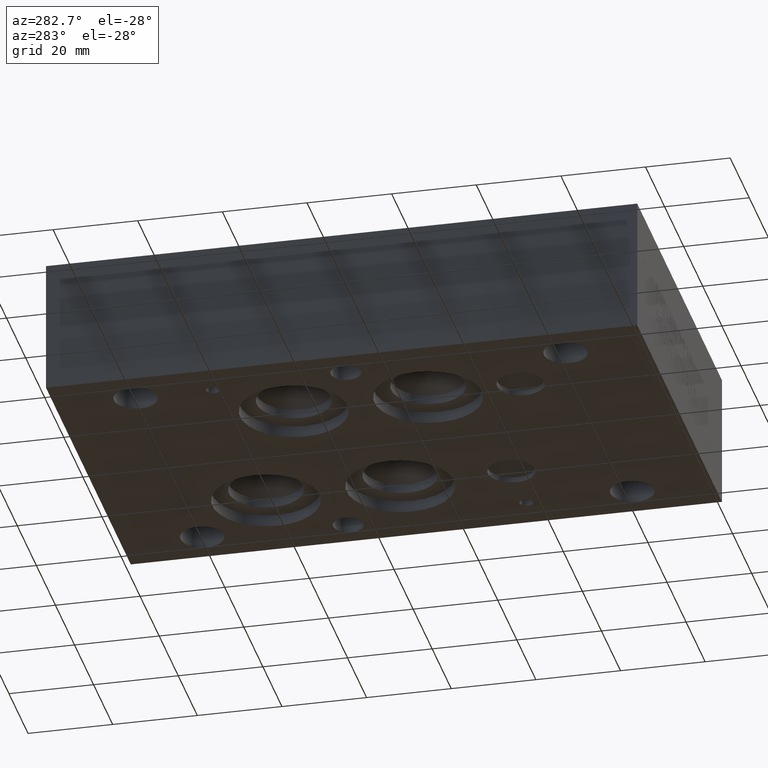
[diagram: clean part render]
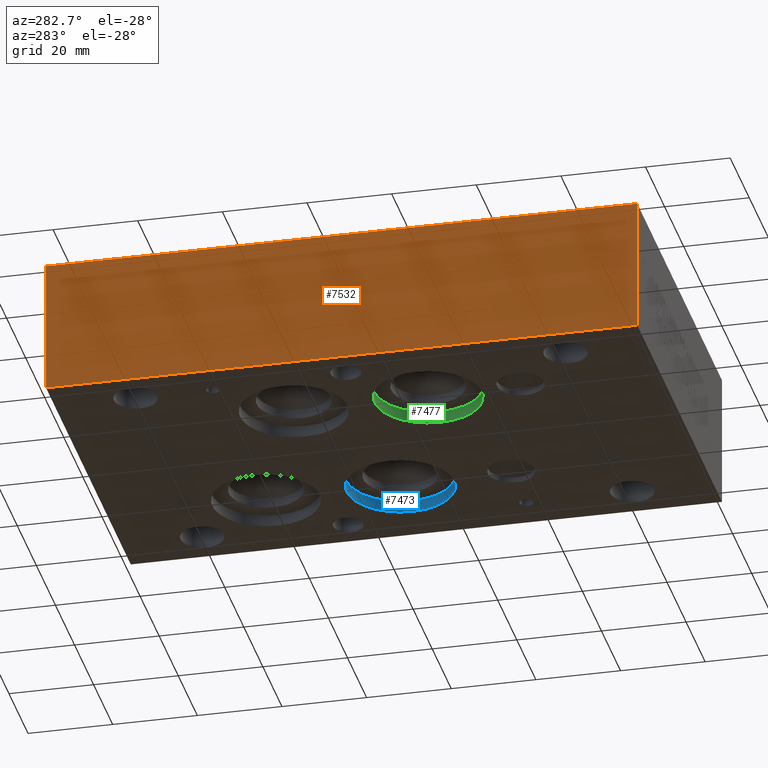
[diagram: same view with three faces highlighted in distinct colors, each labeled with its STEP entity id]
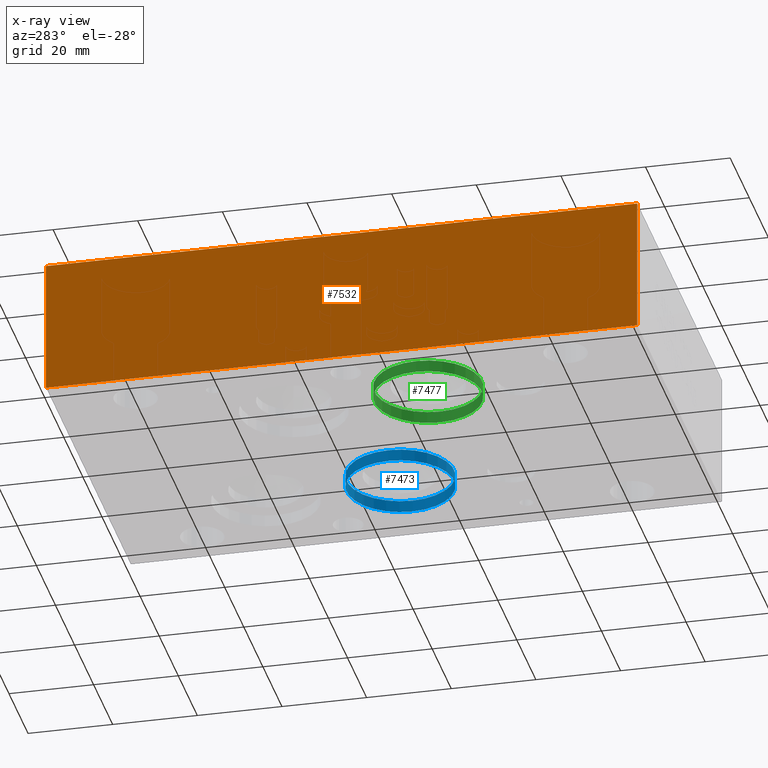
[diagram: x-ray of the same camera — body ghosted, the three highlighted faces saturated]
A machine part, auxiliary view with three faces highlighted in distinct colors.
The next image is the same camera in x-ray (body ghosted, the three faces saturated) — at least one of them is partly hidden behind the body in this view.
Their STEP definitions:

[orange] entity #7532 — the highlighted planar face has unit normal (-1, 0, 0).
#858=FACE_OUTER_BOUND('',#1311,.T.);
#1311=EDGE_LOOP('',(#6538,#6539,#6540,#6541));
#1711=LINE('',#10413,#2478);
#2056=LINE('',#12479,#2823);
#2093=LINE('',#12674,#2860);
#2094=LINE('',#12675,#2861);
#2478=VECTOR('',#8596,10.);
#2823=VECTOR('',#9261,10.);
#2860=VECTOR('',#9492,10.);
#2861=VECTOR('',#9493,10.);
#3127=VERTEX_POINT('',#10406);
#3130=VERTEX_POINT('',#10411);
#3481=VERTEX_POINT('',#12478);
#3542=VERTEX_POINT('',#12673);
#3940=EDGE_CURVE('',#3127,#3130,#1711,.T.);
#4461=EDGE_CURVE('',#3481,#3127,#2056,.T.);
#4550=EDGE_CURVE('',#3542,#3130,#2093,.T.);
#4551=EDGE_CURVE('',#3481,#3542,#2094,.T.);
#6538=ORIENTED_EDGE('',*,*,#4461,.T.);
#6539=ORIENTED_EDGE('',*,*,#3940,.T.);
#6540=ORIENTED_EDGE('',*,*,#4550,.F.);
#6541=ORIENTED_EDGE('',*,*,#4551,.F.);
#6830=PLANE('',#7943);
#7532=ADVANCED_FACE('',(#858),#6830,.T.);
#7943=AXIS2_PLACEMENT_3D('',#12672,#9490,#9491);
#8596=DIRECTION('',(0.,0.,1.));
#9261=DIRECTION('',(0.,-1.,0.));
#9490=DIRECTION('center_axis',(-1.,0.,0.));
#9491=DIRECTION('ref_axis',(0.,-1.,0.));
#9492=DIRECTION('',(0.,-1.,0.));
#9493=DIRECTION('',(0.,0.,1.));
#10406=CARTESIAN_POINT('',(0.,0.,0.));
#10411=CARTESIAN_POINT('',(0.,0.,31.75));
#10413=CARTESIAN_POINT('',(0.,0.,0.));
#12478=CARTESIAN_POINT('',(0.,139.7,0.));
#12479=CARTESIAN_POINT('',(0.,139.7,0.));
#12672=CARTESIAN_POINT('Origin',(0.,139.7,0.));
#12673=CARTESIAN_POINT('',(0.,139.7,31.75));
#12674=CARTESIAN_POINT('',(0.,139.7,31.75));
#12675=CARTESIAN_POINT('',(0.,139.7,0.));

[blue] entity #7473 — the highlighted cylindrical surface (bore or boss wall) has radius 12.7 mm, axis along (0, 0, -1).
#45=CIRCLE('',#7819,12.7);
#46=CIRCLE('',#7820,12.7);
#118=CYLINDRICAL_SURFACE('',#7818,12.7);
#799=FACE_OUTER_BOUND('',#1225,.T.);
#1225=EDGE_LOOP('',(#6317,#6318,#6319,#6320));
#2045=LINE('',#12380,#2812);
#2812=VECTOR('',#9196,12.7);
#3461=VERTEX_POINT('',#12377);
#3462=VERTEX_POINT('',#12379);
#4434=EDGE_CURVE('',#3461,#3461,#45,.T.);
#4435=EDGE_CURVE('',#3461,#3462,#2045,.T.);
#4436=EDGE_CURVE('',#3462,#3462,#46,.T.);
#6317=ORIENTED_EDGE('',*,*,#4434,.F.);
#6318=ORIENTED_EDGE('',*,*,#4435,.T.);
#6319=ORIENTED_EDGE('',*,*,#4436,.F.);
#6320=ORIENTED_EDGE('',*,*,#4435,.F.);
#7473=ADVANCED_FACE('',(#799),#118,.F.);
#7818=AXIS2_PLACEMENT_3D('',#12376,#9192,#9193);
#7819=AXIS2_PLACEMENT_3D('',#12378,#9194,#9195);
#7820=AXIS2_PLACEMENT_3D('',#12381,#9197,#9198);
#9192=DIRECTION('center_axis',(0.,0.,-1.));
#9193=DIRECTION('ref_axis',(1.,0.,0.));
#9194=DIRECTION('center_axis',(0.,0.,1.));
#9195=DIRECTION('ref_axis',(1.,0.,0.));
#9196=DIRECTION('',(0.,0.,1.));
#9197=DIRECTION('center_axis',(0.,0.,-1.));
#9198=DIRECTION('ref_axis',(1.,0.,0.));
#12376=CARTESIAN_POINT('Origin',(65.1002,70.6374,1.397));
#12377=CARTESIAN_POINT('',(52.4002,70.6374,0.));
#12378=CARTESIAN_POINT('Origin',(65.1002,70.6374,0.));
#12379=CARTESIAN_POINT('',(52.4002,70.6374,2.794));
#12380=CARTESIAN_POINT('',(52.4002,70.6374,1.397));
#12381=CARTESIAN_POINT('Origin',(65.1002,70.6374,2.794));

[green] entity #7477 — the highlighted cylindrical surface (bore or boss wall) has radius 12.7 mm, axis along (0, 0, -1).
#49=CIRCLE('',#7827,12.7);
#50=CIRCLE('',#7828,12.7);
#120=CYLINDRICAL_SURFACE('',#7826,12.7);
#803=FACE_OUTER_BOUND('',#1231,.T.);
#1231=EDGE_LOOP('',(#6329,#6330,#6331,#6332));
#2047=LINE('',#12394,#2814);
#2814=VECTOR('',#9214,12.7);
#3465=VERTEX_POINT('',#12391);
#3466=VERTEX_POINT('',#12393);
#4440=EDGE_CURVE('',#3465,#3465,#49,.T.);
#4441=EDGE_CURVE('',#3465,#3466,#2047,.T.);
#4442=EDGE_CURVE('',#3466,#3466,#50,.T.);
#6329=ORIENTED_EDGE('',*,*,#4440,.F.);
#6330=ORIENTED_EDGE('',*,*,#4441,.T.);
#6331=ORIENTED_EDGE('',*,*,#4442,.F.);
#6332=ORIENTED_EDGE('',*,*,#4441,.F.);
#7477=ADVANCED_FACE('',(#803),#120,.F.);
#7826=AXIS2_PLACEMENT_3D('',#12390,#9210,#9211);
#7827=AXIS2_PLACEMENT_3D('',#12392,#9212,#9213);
#7828=AXIS2_PLACEMENT_3D('',#12395,#9215,#9216);
#9210=DIRECTION('center_axis',(0.,0.,-1.));
#9211=DIRECTION('ref_axis',(1.,0.,0.));
#9212=DIRECTION('center_axis',(0.,0.,1.));
#9213=DIRECTION('ref_axis',(1.,0.,0.));
#9214=DIRECTION('',(0.,0.,1.));
#9215=DIRECTION('center_axis',(0.,0.,-1.));
#9216=DIRECTION('ref_axis',(1.,0.,0.));
#12390=CARTESIAN_POINT('Origin',(23.8252,54.7624,1.397));
#12391=CARTESIAN_POINT('',(11.1252,54.7624,0.));
#12392=CARTESIAN_POINT('Origin',(23.8252,54.7624,0.));
#12393=CARTESIAN_POINT('',(11.1252,54.7624,2.794));
#12394=CARTESIAN_POINT('',(11.1252,54.7624,1.397));
#12395=CARTESIAN_POINT('Origin',(23.8252,54.7624,2.794));